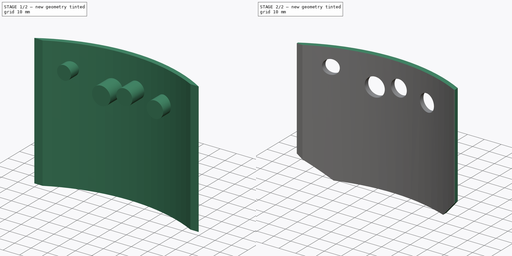
[diagram: build sequence overview — one tinted view per stage of 2, left to right]
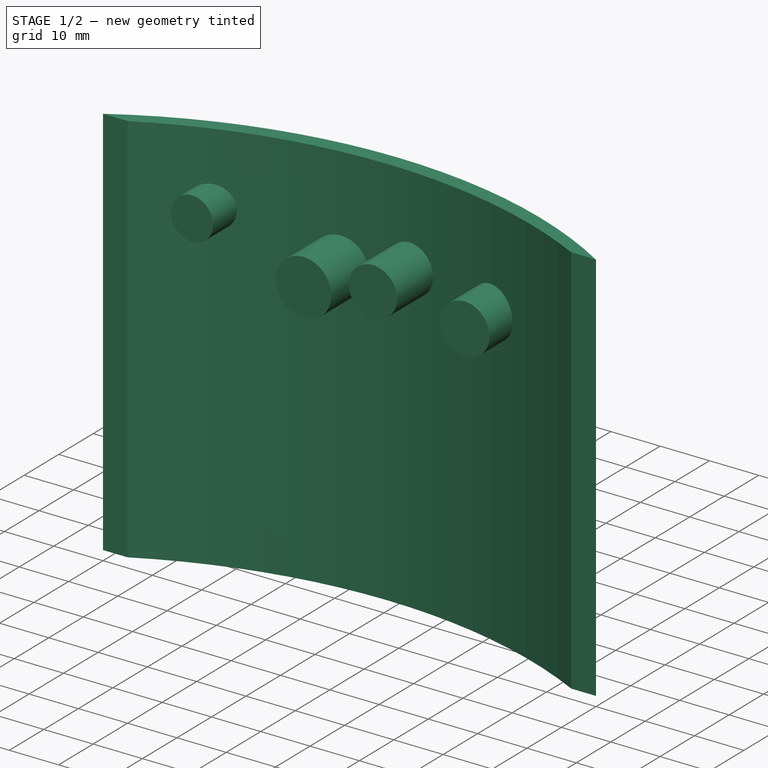
[diagram: stage 1 of 2 — iso view after this stage's code; geometry added in this stage tinted green]
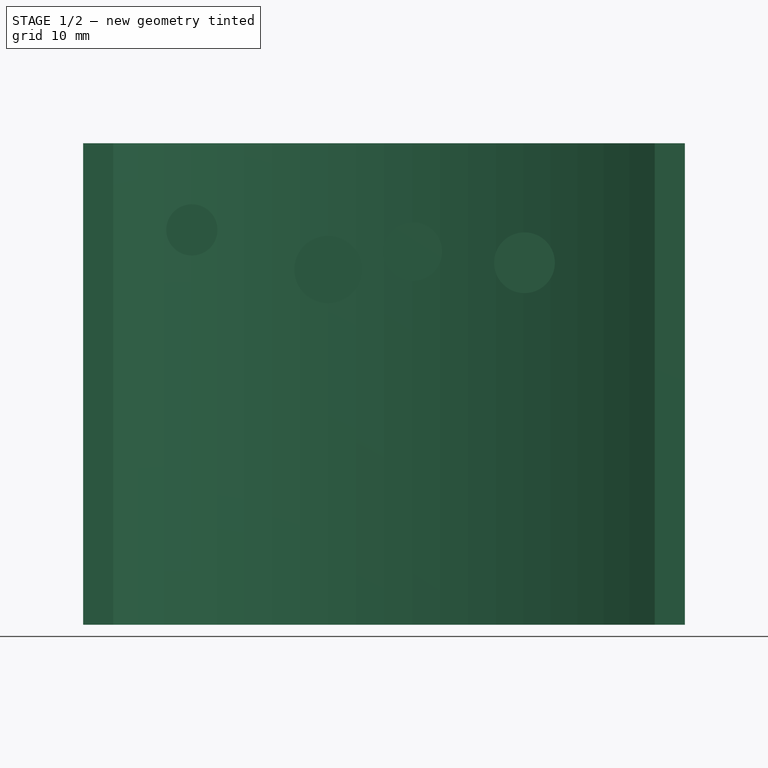
[diagram: stage 1 of 2 — front view after this stage's code; geometry added in this stage tinted green]
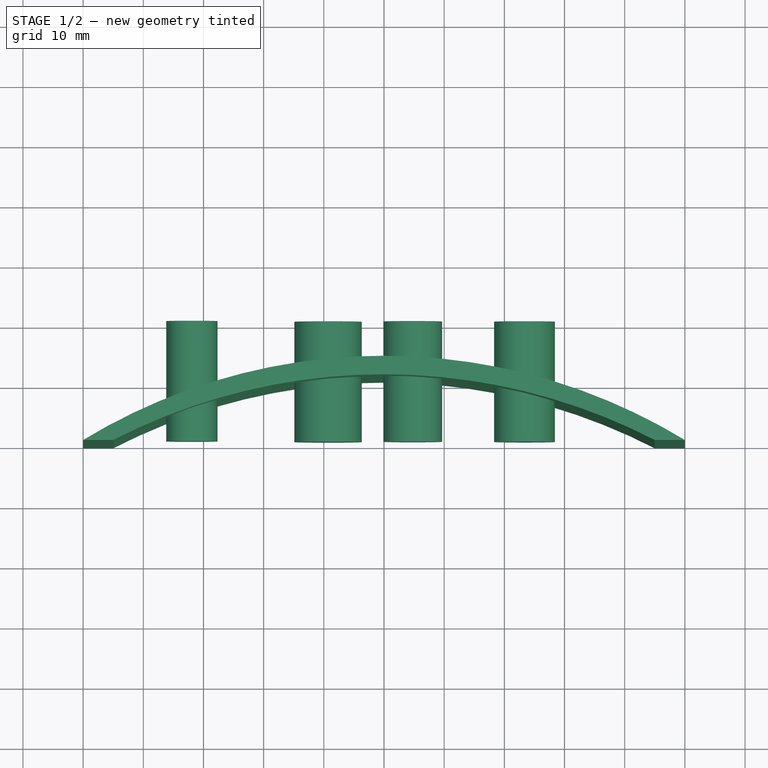
[diagram: stage 1 of 2 — top view after this stage's code; geometry added in this stage tinted green]
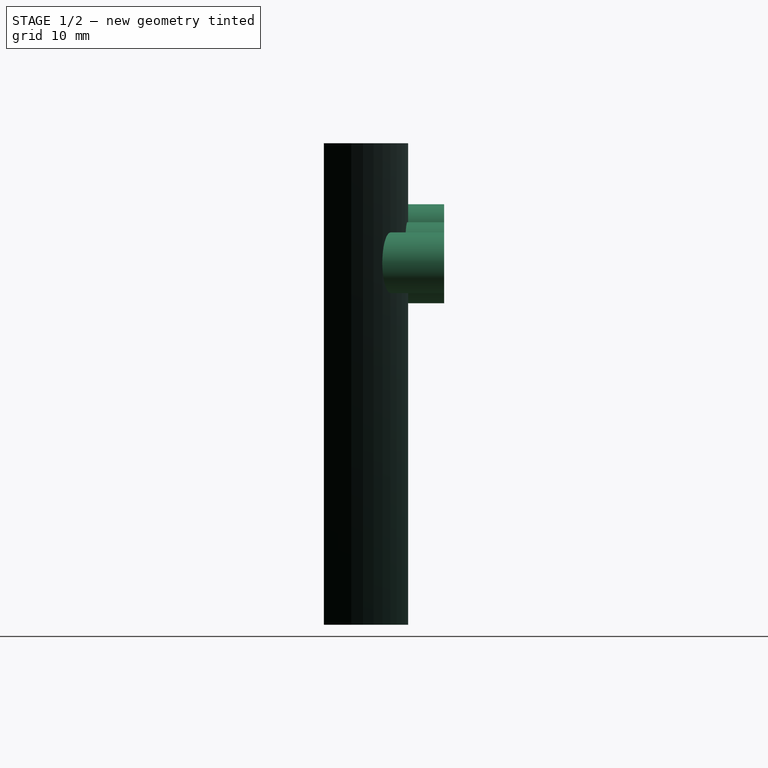
[diagram: stage 1 of 2 — right view after this stage's code; geometry added in this stage tinted green]
FCSTD DOCUMENT  (FreeCAD 0.15R4671 (Git))
Label: Shell
License: All rights reserved
LicenseURL: http://en.wikipedia.org/wiki/All_rights_reserved
objects: Sketcher::SketchObject×3, PartDesign::Pad×2, PartDesign::Pocket×1, Part::Cut×1
note: 10 computed .brp shape members not serialized (recipe doc carries the construction recipe); baked Part::Feature solids carry a one-line shape summary decoded from their .brp

FEATURE [Sketcher::SketchObject] Sketch
  sketch-geometry (6):
    g0: ArcOfCircle CenterX=0 CenterY=-82.2857 CenterZ=0 NormalX=0 NormalY=0 NormalZ=1 Radius=96.2857 StartAngle=1.02478 EndAngle=2.11681
    g1: LineSegment [constr] StartX=0 StartY=0 StartZ=0 EndX=0 EndY=14 EndZ=0
    g2: ArcOfCircle CenterX=0 CenterY=-87.2857 CenterZ=0 NormalX=0 NormalY=0 NormalZ=1 Radius=98.2028 StartAngle=1.09479 EndAngle=2.04681
    g3: LineSegment StartX=0 StartY=-87.2857 StartZ=0 EndX=0 EndY=-82.2857 EndZ=0
    g4: LineSegment StartX=45 StartY=0 StartZ=0 EndX=50 EndY=0 EndZ=0
    g5: LineSegment StartX=-50 StartY=0 StartZ=0 EndX=-45 EndY=0 EndZ=0
  constraints (18):
    c: PointOnObject(g0,g-1)
    c: Symmetric(g0,g0,g-2)
    c: DistanceX(g0,g0) = 100
    c: Coincident(g1,g-1)
    c: Vertical(g1)
    c: DistanceY(g1) = 14
    c: PointOnObject(g1,g0)
    c: Coincident(g3,g2)
    c: Coincident(g3,g0)
    c: Vertical(g3)
    c: DistanceY(g3) = 5
    c: Symmetric(g2,g2,g-2)
    c: DistanceX(g0,g2) = 5
    c: Coincident(g4,g2)
    c: Coincident(g4,g0)
    c: Horizontal(g4)
    c: Coincident(g5,g0)
    c: Coincident(g5,g2)
FEATURE [PartDesign::Pad] Pad
  Length = 80
  Length2 = 100
  Sketch = -> Sketch
  Type = 0
FEATURE [Sketcher::SketchObject] Sketch002
  Placement = pos=(0,0,0) rot=(-1,0,0;4.71239rad)
  sketch-geometry (4):
    g0: Circle CenterX=-31.9305 CenterY=65.6121 CenterZ=0 NormalX=0 NormalY=0 NormalZ=1 Radius=4.25286
    g1: Circle CenterX=-9.29962 CenterY=59.0234 CenterZ=0 NormalX=0 NormalY=0 NormalZ=1 Radius=5.59623
    g2: Circle CenterX=4.77268 CenterY=62.0088 CenterZ=0 NormalX=0 NormalY=0 NormalZ=1 Radius=4.87724
    g3: Circle CenterX=23.3428 CenterY=60.1518 CenterZ=0 NormalX=0 NormalY=0 NormalZ=1 Radius=5.04741
FEATURE [PartDesign::Pad] Pad001
  Length = 20
  Length2 = 100
  Placement = pos=(0,0,0) rot=(-1,0,0;4.71239rad)
  Reversed = true
  Sketch = -> Sketch002
  Type = 0
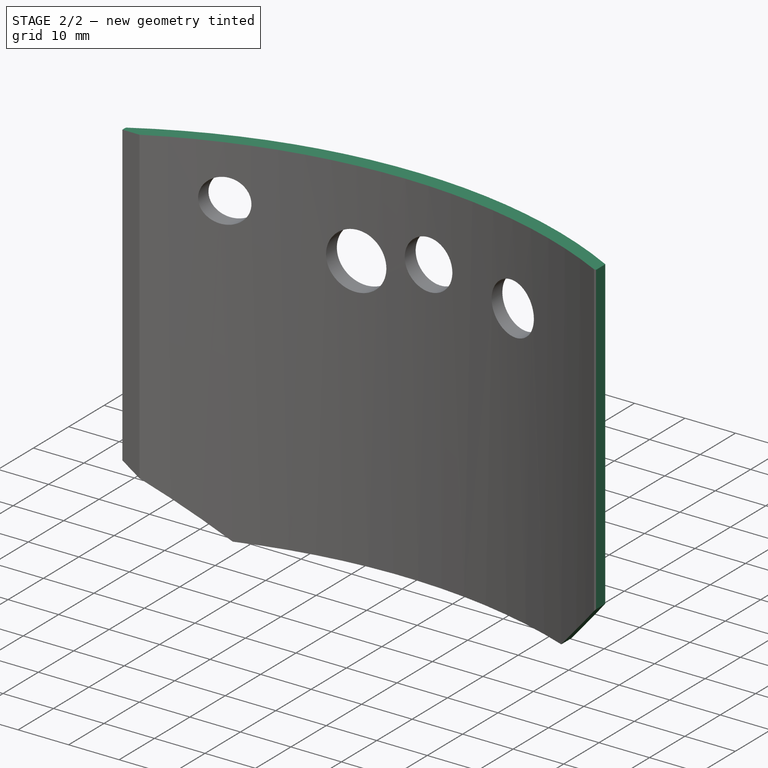
[diagram: stage 2 of 2 — iso view after this stage's code; geometry added in this stage tinted green]
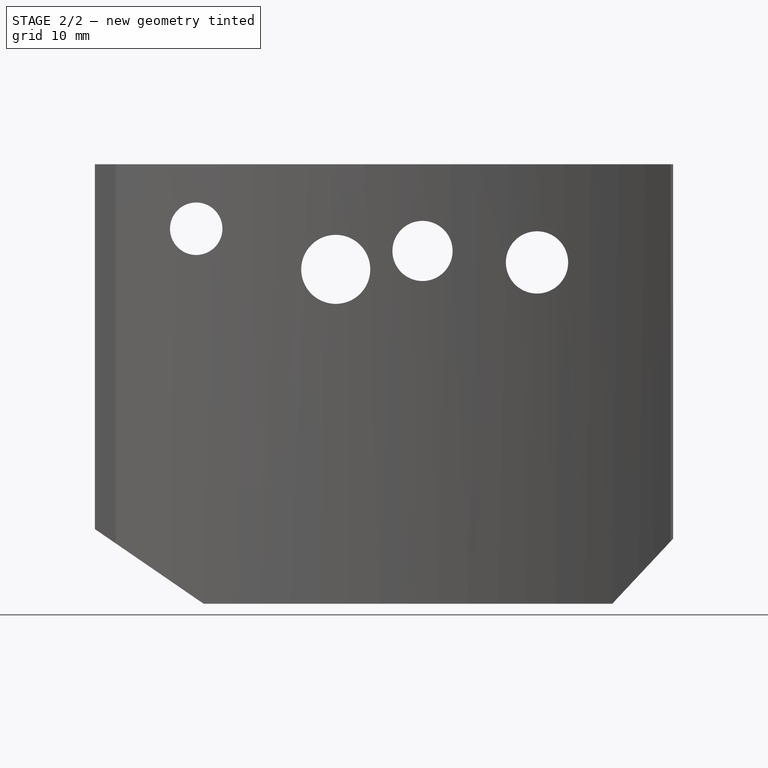
[diagram: stage 2 of 2 — front view after this stage's code; geometry added in this stage tinted green]
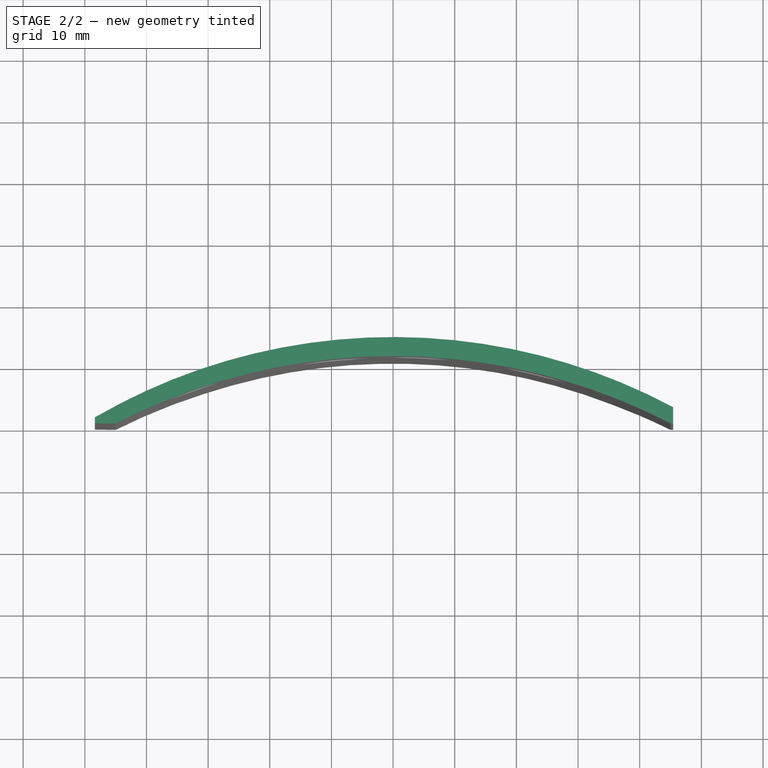
[diagram: stage 2 of 2 — top view after this stage's code; geometry added in this stage tinted green]
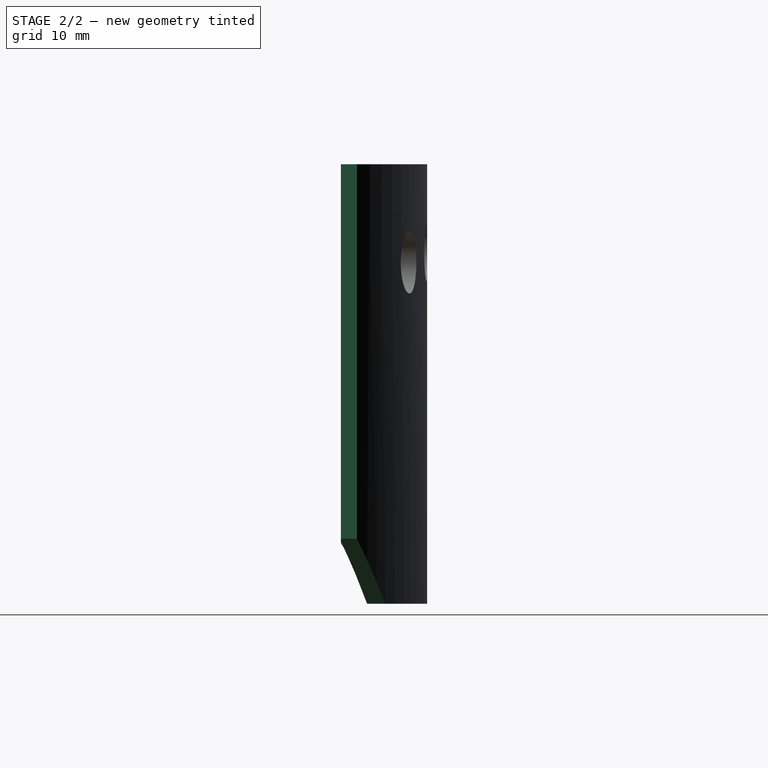
[diagram: stage 2 of 2 — right view after this stage's code; geometry added in this stage tinted green]
FEATURE [Sketcher::SketchObject] Sketch001
  ExternalGeometry = -> [Pad]
  Placement = pos=(0,0,0) rot=(1,0,0;1.5708rad)
  Support = -> Pad [Face3]
  sketch-geometry (10):
    g0: LineSegment StartX=-30.719 StartY=4.78454 StartZ=0 EndX=-48.3604 EndY=16.8971 EndZ=0
    g1: LineSegment StartX=-48.3604 StartY=16.8971 StartZ=0 EndX=-48.3604 EndY=76.0779 EndZ=0
    g2: LineSegment StartX=35.5391 StartY=4.78454 StartZ=0 EndX=45.416 EndY=15.3374 EndZ=0
    g3: LineSegment StartX=45.416 StartY=15.3374 StartZ=0 EndX=45.416 EndY=76.0779 EndZ=0
    g4: LineSegment StartX=-48.3604 StartY=76.0779 StartZ=0 EndX=45.416 EndY=76.0779 EndZ=0
    g5: LineSegment StartX=-30.719 StartY=4.78454 StartZ=0 EndX=35.5391 EndY=4.78454 EndZ=0
    g6: LineSegment StartX=-50 StartY=80 StartZ=0 EndX=50 EndY=80 EndZ=0
    g7: LineSegment StartX=50 StartY=80 StartZ=0 EndX=50 EndY=0 EndZ=0
    g8: LineSegment StartX=50 StartY=0 StartZ=0 EndX=-50 EndY=0 EndZ=0
    g9: LineSegment StartX=-50 StartY=0 StartZ=0 EndX=-50 EndY=80 EndZ=0
  constraints (18):
    c: Coincident(g1,g0)
    c: Vertical(g1)
    c: Coincident(g3,g2)
    c: Vertical(g3)
    c: Coincident(g4,g1)
    c: Coincident(g4,g3)
    c: Horizontal(g4)
    c: Coincident(g5,g0)
    c: Coincident(g5,g2)
    c: Horizontal(g5)
    c: Coincident(g-4,g6)
    c: Coincident(g6,g-3)
    c: Coincident(g6,g7)
    c: Coincident(g7,g-3)
    c: Coincident(g7,g8)
    c: Coincident(g8,g-4)
    c: Coincident(g8,g9)
    c: Coincident(g9,g6)
FEATURE [PartDesign::Pocket] Pocket
  Length = 5
  Sketch = -> Sketch001
  Type = 1
FEATURE [Part::Cut] Cut
  Base = -> Pocket
  Tool = -> Pad001
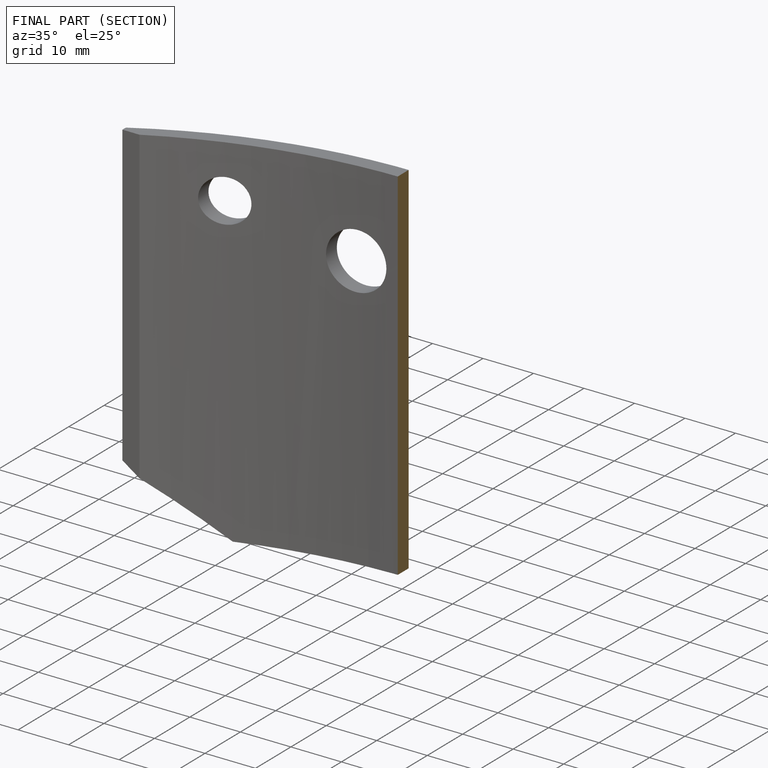
[diagram: finished part — half-section view (interior)]
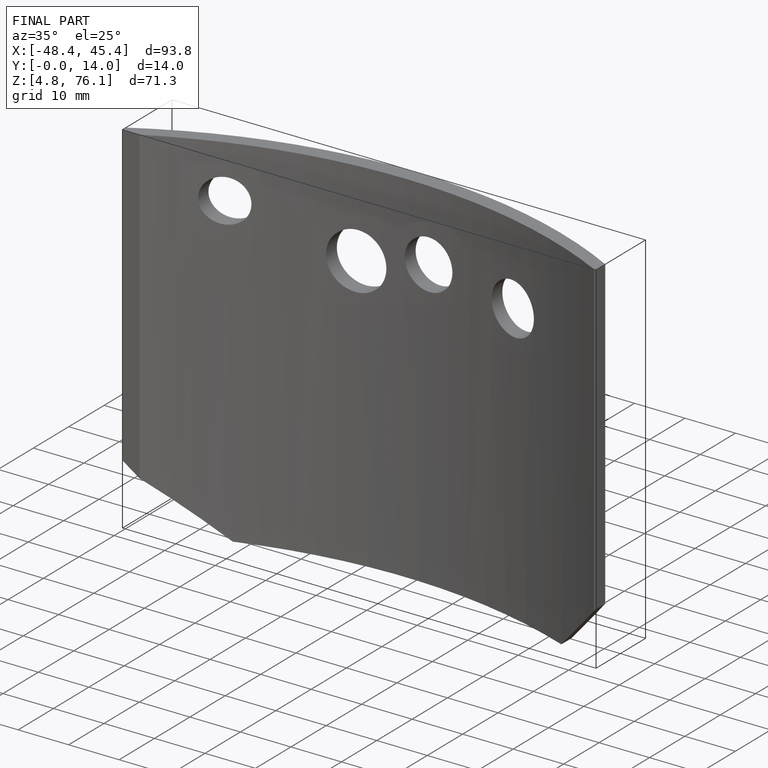
[diagram: finished part — iso view with bounding-box wireframe]
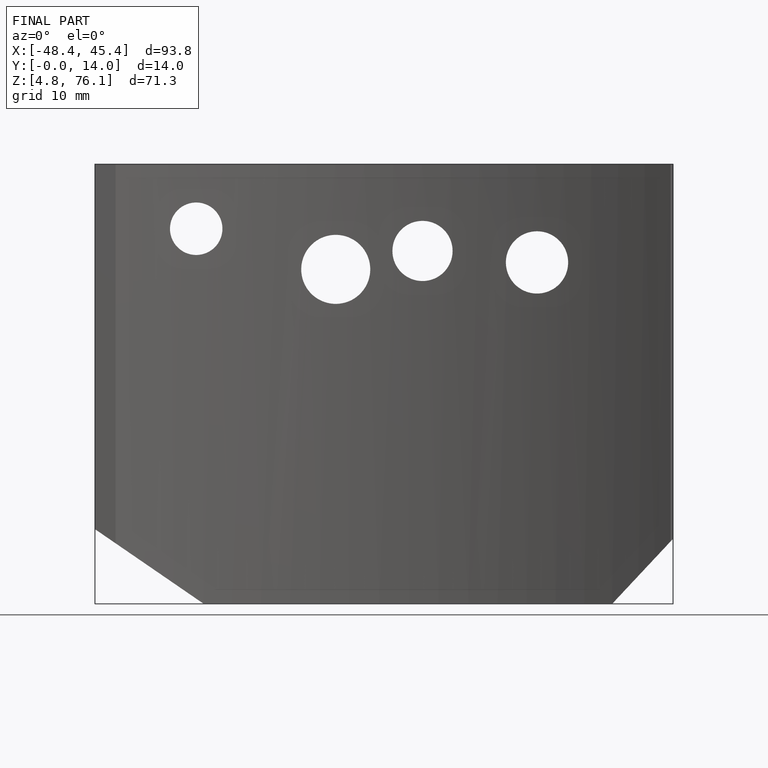
[diagram: finished part — front view with bounding-box wireframe]
